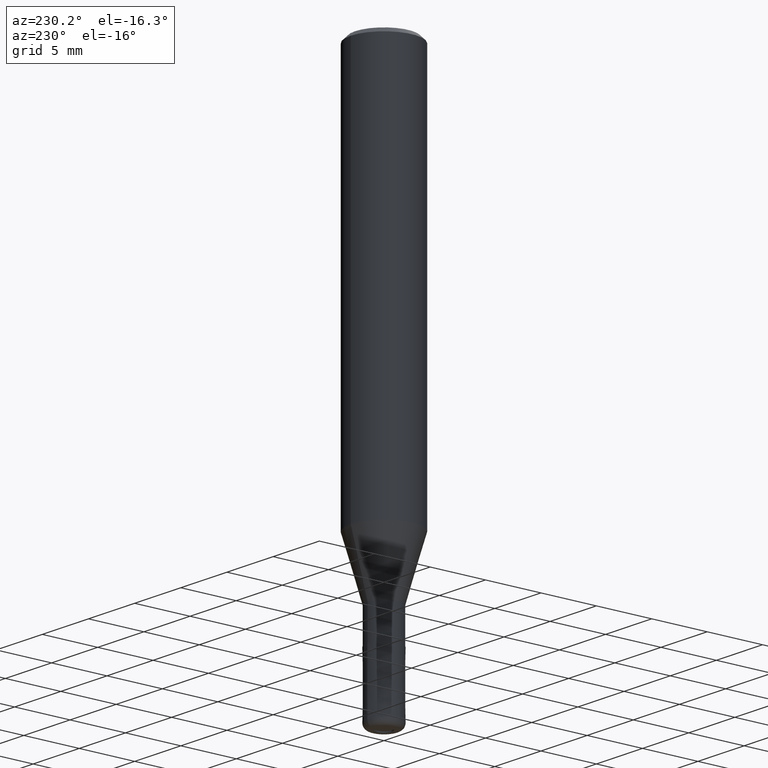
[diagram: clean part render]
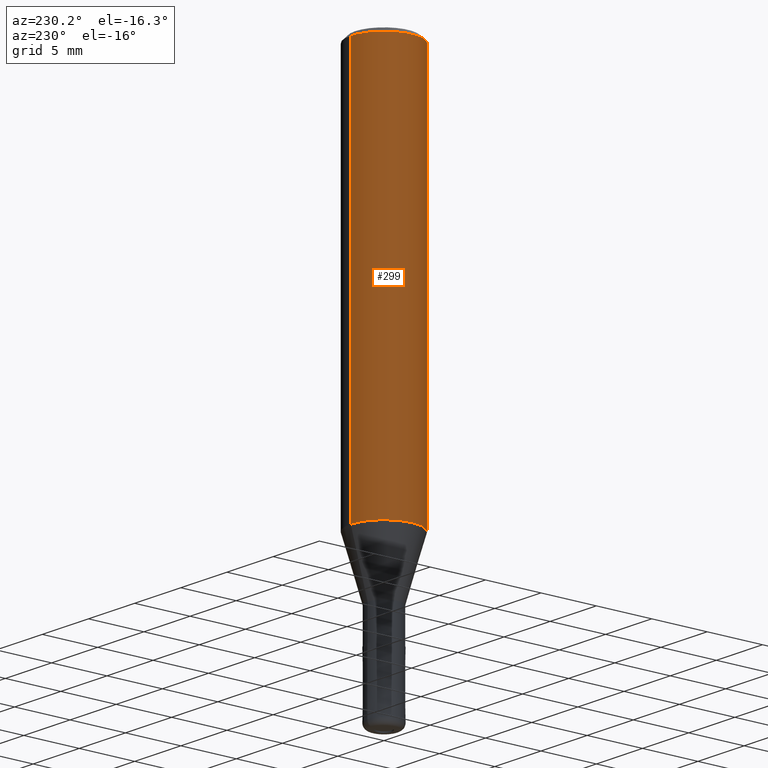
[diagram: same view with one face highlighted and labeled with its STEP entity id]
A machine part, auxiliary view. The second image highlights one B-rep face of the part: STEP entity #299.
In plain terms, the highlighted cylindrical surface (partial cylindrical patch) has radius 3 mm, axis along (-0, -0, 1).
Its self-contained STEP definition (entity closure, byte-faithful):
#157=EDGE_CURVE('',#211,#279,#364,.T.);
#175=VERTEX_POINT('',#384);
#185=EDGE_CURVE('',#175,#279,#395,.T.);
#209=EDGE_CURVE('',#215,#175,#420,.T.);
#211=VERTEX_POINT('',#422);
#215=VERTEX_POINT('',#427);
#259=EDGE_CURVE('',#211,#215,#478,.T.);
#279=VERTEX_POINT('',#503);
#299=ADVANCED_FACE('',(#526),#527,.T.);
#364=CIRCLE('',#594,3.0);
#384=CARTESIAN_POINT('',(0.0,3.0,-0.399999999999999));
#395=LINE('',#635,#636);
#420=CIRCLE('',#671,3.0);
#422=CARTESIAN_POINT('',(3.67381906146713E-016,-3.0,-35.682));
#427=CARTESIAN_POINT('',(3.67381906146713E-016,-3.0,-0.399999999999999));
#478=LINE('',#743,#744);
#503=CARTESIAN_POINT('',(0.0,3.0,-35.682));
#526=FACE_OUTER_BOUND('',#798,.T.);
#527=CYLINDRICAL_SURFACE('',#799,3.0);
#594=AXIS2_PLACEMENT_3D('',#856,#857,#858);
#635=CARTESIAN_POINT('',(-3.67381906146713E-016,3.0,-18.041));
#636=VECTOR('',#900,1.0);
#671=AXIS2_PLACEMENT_3D('',#926,#927,#928);
#743=CARTESIAN_POINT('',(3.67381906146713E-016,-3.0,-18.041));
#744=VECTOR('',#1001,1.0);
#798=EDGE_LOOP('',(#1066,#1067,#1068,#1069));
#799=AXIS2_PLACEMENT_3D('',#1070,#1071,#1072);
#856=CARTESIAN_POINT('',(0.0,0.0,-35.682));
#857=DIRECTION('',(0.0,0.0,-1.0));
#858=DIRECTION('',(0.0,1.0,0.0));
#900=DIRECTION('',(0.0,0.0,-1.0));
#926=CARTESIAN_POINT('',(0.0,0.0,-0.399999999999999));
#927=DIRECTION('',(0.0,0.0,-1.0));
#928=DIRECTION('',(0.0,1.0,0.0));
#1001=DIRECTION('',(-0.0,-0.0,1.0));
#1066=ORIENTED_EDGE('',*,*,#185,.T.);
#1067=ORIENTED_EDGE('',*,*,#157,.F.);
#1068=ORIENTED_EDGE('',*,*,#259,.T.);
#1069=ORIENTED_EDGE('',*,*,#209,.T.);
#1070=CARTESIAN_POINT('',(0.0,0.0,-18.041));
#1071=DIRECTION('',(-0.0,-0.0,1.0));
#1072=DIRECTION('',(0.0,1.0,0.0));